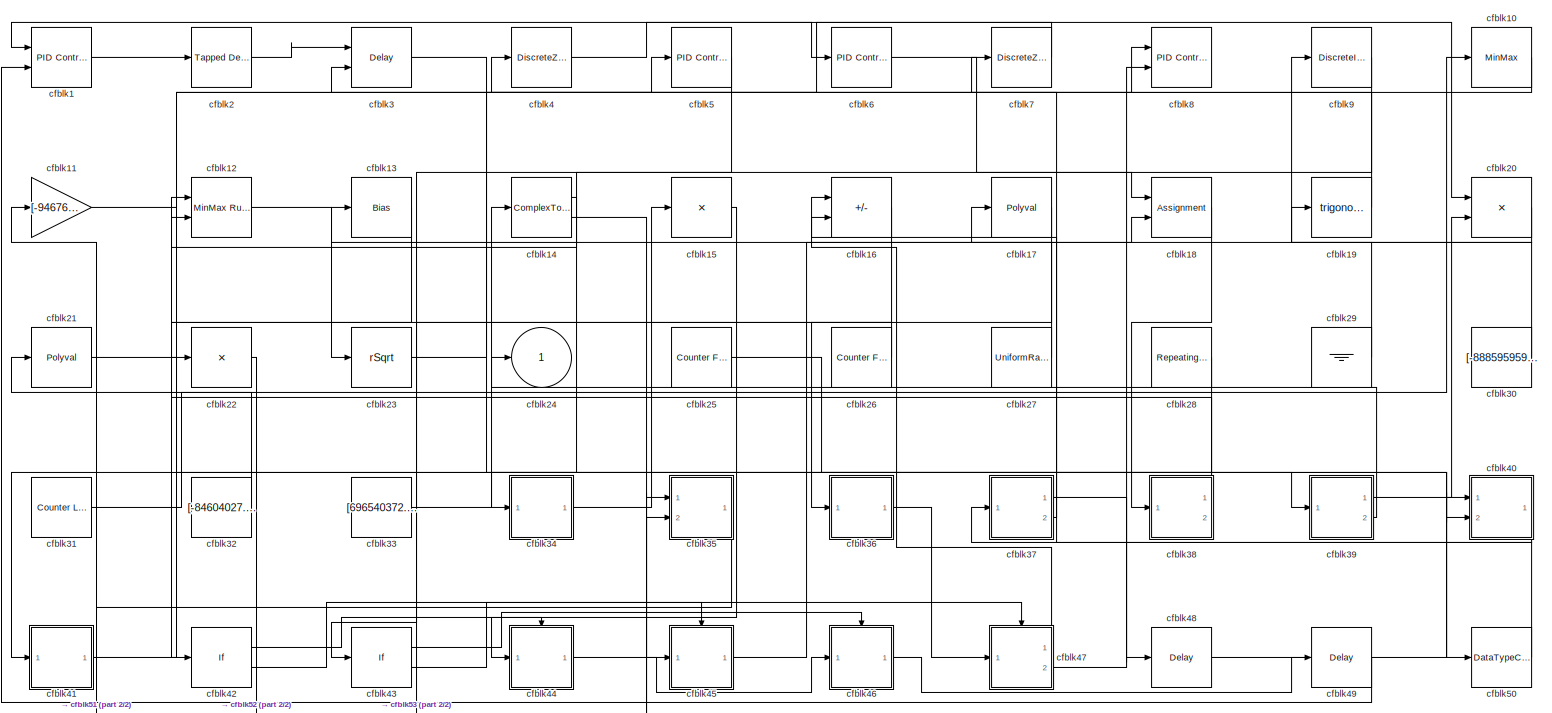
[diagram: root canvas - part 1/2, most of the canvas]
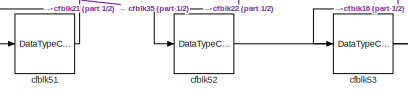
[diagram: root canvas - part 2/2, bottom left region]
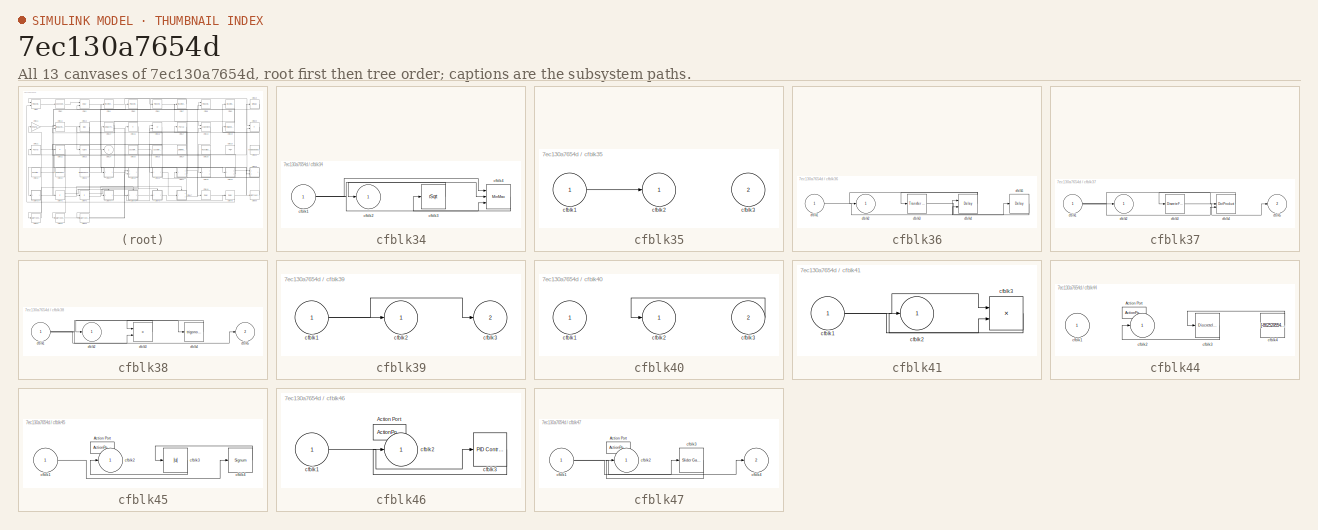
[diagram: thumbnail index - all 13 canvases of the model, root first then tree order]
MODEL slx_7ec130a7654d
KIND model
CONFIG AbsTol = auto
CONFIG EnableMultiTasking = off
CONFIG FixedStep = auto
CONFIG MaxStep = auto
CONFIG MinStep = auto
CONFIG RelTol = 1e-3
CONFIG SampleTimeConstraint = Unconstrained
CONFIG SolverName = VariableStepAuto
CONFIG StartTime = 0.0
CONFIG StopTime = 10.0
BLOCK [Reference] cfblk1  REF=slpidlib/PID Controller (2DOF)
  Ports = [2, 1]
  SourceBlock = slpidlib/PID Controller (2DOF)
  SourceProductBaseCode = SL
  SourceType = PID 2dof
BLOCK [MinMax] cfblk10
  Function = max
  Ports = [1, 1]
BLOCK [Gain] cfblk11
  Gain = [-946760570.547353]
BLOCK [Reference] cfblk12  REF=simulink/Math
Operations/MinMax
Running
Resettable
  Ports = [2, 1]
  SourceBlock = simulink/Math\nOperations/MinMax\nRunning\nResettable
  SourceProductBaseCode = SL
  SourceType = MinMax Running Resettable
BLOCK [Bias] cfblk13
  Bias = [790891112.401772]
  SaturateOnIntegerOverflow = off
BLOCK [ComplexToRealImag] cfblk14
  Ports = [1, 2]
BLOCK [Product] cfblk15
  Inputs = *
  Ports = [1, 1]
BLOCK [Sum] cfblk16
  IconShape = rectangular
  Inputs = +-
  Ports = [2, 1]
BLOCK [Polyval] cfblk17
  Coefs = [ +2.081618890e-019, -1.441693666e-014, +4.719686976e-010, -8.536869453e-006, +1.621573104e-001, -8.087801117e+001 ]
BLOCK [Assignment] cfblk18
  DiagnosticForDimensions = Warning
  IndexOptions = Index vector (dialog)
  Indices = 1
  OutputSizes = 1
  Ports = [2, 1]
BLOCK [Trigonometry] cfblk19
  Ports = [1, 1]
BLOCK [Reference] cfblk2  REF=simulink/Discrete/Tapped Delay
  Ports = [1, 1]
  SourceBlock = simulink/Discrete/Tapped Delay
  SourceProductBaseCode = SL
  SourceType = Tapped Delay Line
BLOCK [Product] cfblk20
  Inputs = **
  Ports = [2, 1]
BLOCK [Polyval] cfblk21
  Coefs = [ +2.081618890e-019, -1.441693666e-014, +4.719686976e-010, -8.536869453e-006, +1.621573104e-001, -8.087801117e+001 ]
BLOCK [Product] cfblk22
  Inputs = *
  Ports = [1, 1]
BLOCK [Sqrt] cfblk23
  AlgorithmType = Newton-Raphson
  Operator = rSqrt
BLOCK [Outport] cfblk24
BLOCK [Reference] cfblk25  REF=simulink/Sources/Counter
Free-Running
  Ports = [0, 1]
  SourceBlock = simulink/Sources/Counter\nFree-Running
  SourceProductBaseCode = SL
  SourceType = Counter Free-Running
BLOCK [Reference] cfblk26  REF=simulink/Sources/Counter
Free-Running
  Ports = [0, 1]
  SourceBlock = simulink/Sources/Counter\nFree-Running
  SourceProductBaseCode = SL
  SourceType = Counter Free-Running
BLOCK [UniformRandomNumber] cfblk27
  Maximum = [3664265038.877788]
  Minimum = [-3429399873.615873]
  SampleTime = 0.1
  Seed = [99668258.000000]
BLOCK [Reference] cfblk28  REF=simulink/Sources/Repeating
Sequence
  Ports = [0, 1]
  SourceBlock = simulink/Sources/Repeating\nSequence
  SourceProductBaseCode = SL
  SourceType = Repeating table
BLOCK [Ground] cfblk29
BLOCK [Delay] cfblk3
  DelayLengthSource = Input port
  InputPortMap = u0,p1
  Ports = [2, 1]
  SampleTime = 1
BLOCK [Constant] cfblk30
  SampleTime = 1
  Value = [-888595959.215219]
BLOCK [Reference] cfblk31  REF=simulink/Sources/Counter
Limited
  Ports = [0, 1]
  SourceBlock = simulink/Sources/Counter\nLimited
  SourceProductBaseCode = SL
  SourceType = Counter Limited
BLOCK [Constant] cfblk32
  SampleTime = 1
  Value = [-84604027.524397]
BLOCK [Constant] cfblk33
  SampleTime = 1
  Value = [696540372.431601]
BLOCK [SubSystem] cfblk34
  Ports = [1, 1]
  RequestExecContextInheritance = off
BLOCK [Inport] cfblk34/cfblk1
BLOCK [Outport] cfblk34/cfblk2
BLOCK [Sqrt] cfblk34/cfblk3
  AlgorithmType = Newton-Raphson
  Operator = rSqrt
BLOCK [MinMax] cfblk34/cfblk4
  Inputs = 3
  Ports = [3, 1]
BLOCK [SubSystem] cfblk35
  Ports = [2, 1]
  RequestExecContextInheritance = off
BLOCK [Inport] cfblk35/cfblk1
BLOCK [Outport] cfblk35/cfblk2
BLOCK [Inport] cfblk35/cfblk3
  Port = 2
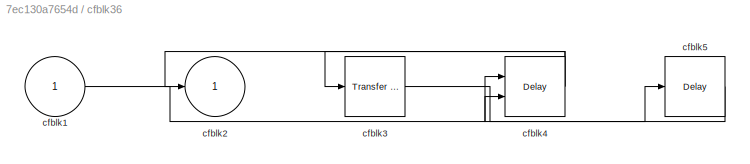
BLOCK [SubSystem] cfblk36
  Ports = [1, 1]
  RequestExecContextInheritance = off
BLOCK [Inport] cfblk36/cfblk1
BLOCK [Outport] cfblk36/cfblk2
BLOCK [Reference] cfblk36/cfblk3  REF=simulink/Discrete/Transfer Fcn
First Order
  Ports = [1, 1]
  SourceBlock = simulink/Discrete/Transfer Fcn\nFirst Order
  SourceProductBaseCode = SL
  SourceType = First Order Transfer Fcn
BLOCK [Delay] cfblk36/cfblk4
  DelayLengthSource = Input port
  InputPortMap = u0,p1
  Ports = [2, 1]
  SampleTime = 1
BLOCK [Delay] cfblk36/cfblk5
  InputPortMap = u0
  Ports = [1, 1]
  SampleTime = 1
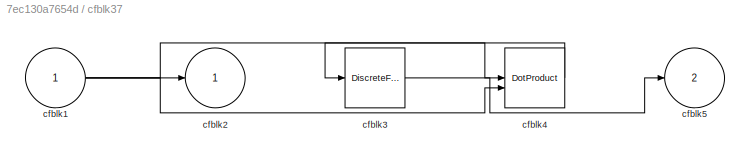
BLOCK [SubSystem] cfblk37
  Ports = [1, 2]
  RequestExecContextInheritance = off
BLOCK [Inport] cfblk37/cfblk1
BLOCK [Outport] cfblk37/cfblk2
BLOCK [DiscreteFir] cfblk37/cfblk3
  InputPortMap = u0
  OutputPortMap = o0
  Ports = [1, 1]
  SampleTime = 1
BLOCK [DotProduct] cfblk37/cfblk4
  OutDataTypeStr = Inherit: Inherit via internal rule
BLOCK [Outport] cfblk37/cfblk5
  Port = 2
BLOCK [SubSystem] cfblk38
  Ports = [1, 2]
  RequestExecContextInheritance = off
BLOCK [Inport] cfblk38/cfblk1
BLOCK [Outport] cfblk38/cfblk2
BLOCK [Product] cfblk38/cfblk3
  Ports = [2, 1]
BLOCK [Trigonometry] cfblk38/cfblk4
  Ports = [1, 1]
BLOCK [Outport] cfblk38/cfblk5
  Port = 2
BLOCK [SubSystem] cfblk39
  Ports = [1, 2]
  RequestExecContextInheritance = off
BLOCK [Inport] cfblk39/cfblk1
BLOCK [Outport] cfblk39/cfblk2
BLOCK [Outport] cfblk39/cfblk3
  Port = 2
BLOCK [DiscreteZeroPole] cfblk4
  Gain = 1
  Poles = [0 0.5]
BLOCK [SubSystem] cfblk40
  Ports = [2, 1]
  RequestExecContextInheritance = off
BLOCK [Inport] cfblk40/cfblk1
BLOCK [Outport] cfblk40/cfblk2
BLOCK [Inport] cfblk40/cfblk3
  Port = 2
BLOCK [SubSystem] cfblk41
  Ports = [1, 1]
  RequestExecContextInheritance = off
BLOCK [Inport] cfblk41/cfblk1
BLOCK [Outport] cfblk41/cfblk2
BLOCK [Product] cfblk41/cfblk3
  Inputs = **
  Ports = [2, 1]
BLOCK [If] cfblk42
  IfExpression = u1 >= 0
  Ports = [1, 2]
  SampleTime = 1
BLOCK [If] cfblk43
  IfExpression = u1 >= 0
  Ports = [1, 2]
  SampleTime = 1
BLOCK [SubSystem] cfblk44
  Ports = [1, 1, 0, 0, 0, 0, 0, 1]
  RequestExecContextInheritance = off
  TreatAsAtomicUnit = on
BLOCK [ActionPort] cfblk44/Action Port
  ActionPortLabel = if(u1 >= 0)
BLOCK [Inport] cfblk44/cfblk1
BLOCK [Outport] cfblk44/cfblk2
BLOCK [DiscreteIntegrator] cfblk44/cfblk3
  ICPrevOutput = DiscIntNeverNeededParam
  ICPrevScaledInput = DiscIntNeverNeededParam
  InitialConditionSetting = Auto
  Ports = [1, 1]
  SampleTime = -1
BLOCK [Constant] cfblk44/cfblk4
  SampleTime = 1
  Value = [-862529554.778142]
BLOCK [SubSystem] cfblk45
  Ports = [1, 1, 0, 0, 0, 0, 0, 1]
  RequestExecContextInheritance = off
  TreatAsAtomicUnit = on
BLOCK [ActionPort] cfblk45/Action Port
  ActionPortLabel = else
BLOCK [Inport] cfblk45/cfblk1
BLOCK [Outport] cfblk45/cfblk2
BLOCK [Abs] cfblk45/cfblk3
  SaturateOnIntegerOverflow = off
BLOCK [Signum] cfblk45/cfblk4
BLOCK [SubSystem] cfblk46
  Ports = [1, 1, 0, 0, 0, 0, 0, 1]
  RequestExecContextInheritance = off
  TreatAsAtomicUnit = on
BLOCK [ActionPort] cfblk46/Action Port
  ActionPortLabel = if(u1 >= 0)
BLOCK [Inport] cfblk46/cfblk1
BLOCK [Outport] cfblk46/cfblk2
BLOCK [Reference] cfblk46/cfblk3  REF=slpidlib/PID Controller
  Ports = [1, 1]
  SourceBlock = slpidlib/PID Controller
  SourceProductBaseCode = SL
  SourceType = PID 1dof
BLOCK [SubSystem] cfblk47
  Ports = [1, 2, 0, 0, 0, 0, 0, 1]
  RequestExecContextInheritance = off
  TreatAsAtomicUnit = on
BLOCK [ActionPort] cfblk47/Action Port
  ActionPortLabel = else
BLOCK [Inport] cfblk47/cfblk1
BLOCK [Outport] cfblk47/cfblk2
BLOCK [Reference] cfblk47/cfblk3  REF=simulink/Math
Operations/Slider
Gain
  Ports = [1, 1]
  SourceBlock = simulink/Math\nOperations/Slider\nGain
  SourceProductBaseCode = SL
  SourceType = Slider Gain
BLOCK [Outport] cfblk47/cfblk4
  Port = 2
BLOCK [Delay] cfblk48
  InputPortMap = u0
  Ports = [1, 1]
  SampleTime = 1
BLOCK [Delay] cfblk49
  InputPortMap = u0
  Ports = [1, 1]
  SampleTime = 1
BLOCK [Reference] cfblk5  REF=slpidlib/PID Controller
  Ports = [1, 1]
  SourceBlock = slpidlib/PID Controller
  SourceProductBaseCode = SL
  SourceType = PID 1dof
BLOCK [DataTypeConversion] cfblk50
  RndMeth = Floor
  SaturateOnIntegerOverflow = off
BLOCK [DataTypeConversion] cfblk51
  RndMeth = Floor
  SaturateOnIntegerOverflow = off
BLOCK [DataTypeConversion] cfblk52
  RndMeth = Floor
  SaturateOnIntegerOverflow = off
BLOCK [DataTypeConversion] cfblk53
  RndMeth = Floor
  SaturateOnIntegerOverflow = off
BLOCK [Reference] cfblk6  REF=slpidlib/PID Controller
  Ports = [1, 1]
  SourceBlock = slpidlib/PID Controller
  SourceProductBaseCode = SL
  SourceType = PID 1dof
BLOCK [DiscreteZeroPole] cfblk7
  Gain = 1
  Poles = [0 0.5]
BLOCK [Reference] cfblk8  REF=slpidlib/PID Controller (2DOF)
  Ports = [2, 1]
  SourceBlock = slpidlib/PID Controller (2DOF)
  SourceProductBaseCode = SL
  SourceType = PID 2dof
BLOCK [DiscreteIntegrator] cfblk9
  ICPrevOutput = DiscIntNeverNeededParam
  ICPrevScaledInput = DiscIntNeverNeededParam
  InitialConditionSetting = Auto
  Ports = [1, 1]
LINE cfblk10:1 -> cfblk3:2
LINE cfblk11:1 -> cfblk20:1
LINE cfblk12:1 -> cfblk23:1
LINE cfblk13:1 -> cfblk42:1
LINE cfblk14:1 -> cfblk12:2
LINE cfblk14:2 -> cfblk45:1
LINE cfblk15:1 -> cfblk44:1
LINE cfblk16:1 -> cfblk53:1
LINE cfblk17:1 -> cfblk36:1
LINE cfblk18:1 -> cfblk38:1
LINE cfblk19:1 -> cfblk4:1
LINE cfblk1:1 -> cfblk2:1
LINE cfblk20:1 -> cfblk9:1
LINE cfblk21:1 -> cfblk39:1
LINE cfblk22:1 -> cfblk52:1
LINE cfblk23:1 -> cfblk5:1
LINE cfblk25:1 -> cfblk50:1
LINE cfblk26:1 -> cfblk22:1
LINE cfblk27:1 -> cfblk17:1
LINE cfblk28:1 -> cfblk41:1
LINE cfblk29:1 -> cfblk13:1
LINE cfblk2:1 -> cfblk3:1
LINE cfblk30:1 -> cfblk19:1
LINE cfblk31:1 -> cfblk10:1
LINE cfblk32:1 -> cfblk11:1
LINE cfblk33:1 -> cfblk14:1
NET cfblk34/cfblk1:1 -> cfblk34/cfblk4:1, cfblk34/cfblk4:2, cfblk34/cfblk4:3
LINE cfblk34/cfblk3:1 -> cfblk34/cfblk2:1
LINE cfblk34/cfblk4:1 -> cfblk34/cfblk3:1
LINE cfblk34:1 -> cfblk15:1
LINE cfblk35/cfblk1:1 -> cfblk35/cfblk2:1
LINE cfblk35:1 -> cfblk51:1
LINE cfblk36/cfblk1:1 -> cfblk36/cfblk4:1
LINE cfblk36/cfblk3:1 -> cfblk36/cfblk5:1
NET cfblk36/cfblk4:1 -> cfblk36/cfblk2:1, cfblk36/cfblk3:1
LINE cfblk36/cfblk5:1 -> cfblk36/cfblk4:2
LINE cfblk36:1 -> cfblk47:1
NET cfblk37/cfblk1:1 -> cfblk37/cfblk2:1, cfblk37/cfblk4:1, cfblk37/cfblk4:2
LINE cfblk37/cfblk3:1 -> cfblk37/cfblk5:1
LINE cfblk37/cfblk4:1 -> cfblk37/cfblk3:1
LINE cfblk37:1 -> cfblk48:1
LINE cfblk37:2 -> cfblk16:2
NET cfblk38/cfblk1:1 -> cfblk38/cfblk3:2, cfblk38/cfblk4:1, cfblk38/cfblk5:1
LINE cfblk38/cfblk3:1 -> cfblk38/cfblk2:1
LINE cfblk38/cfblk4:1 -> cfblk38/cfblk3:1
LINE cfblk38:1 -> cfblk12:1
NET cfblk39/cfblk1:1 -> cfblk39/cfblk2:1, cfblk39/cfblk3:1
LINE cfblk39:1 -> cfblk20:2
LINE cfblk39:2 -> cfblk24:1
LINE cfblk3:1 -> cfblk40:2
LINE cfblk40/cfblk3:1 -> cfblk40/cfblk2:1
LINE cfblk40:1 -> cfblk37:1
NET cfblk41/cfblk1:1 -> cfblk41/cfblk3:1, cfblk41/cfblk3:2
LINE cfblk41/cfblk3:1 -> cfblk41/cfblk2:1
LINE cfblk41:1 -> cfblk8:1
LINE cfblk42:1 -> cfblk44:ifaction
LINE cfblk42:2 -> cfblk45:ifaction
LINE cfblk43:1 -> cfblk46:ifaction
LINE cfblk43:2 -> cfblk47:ifaction
LINE cfblk44/cfblk3:1 -> cfblk44/cfblk2:1
LINE cfblk44/cfblk4:1 -> cfblk44/cfblk3:1
LINE cfblk44:1 -> cfblk46:1
LINE cfblk45/cfblk1:1 -> cfblk45/cfblk4:1
LINE cfblk45/cfblk3:1 -> cfblk45/cfblk2:1
LINE cfblk45/cfblk4:1 -> cfblk45/cfblk3:1
LINE cfblk45:1 -> cfblk18:2
LINE cfblk46/cfblk1:1 -> cfblk46/cfblk3:1
LINE cfblk46/cfblk3:1 -> cfblk46/cfblk2:1
LINE cfblk46:1 -> cfblk49:1
NET cfblk47/cfblk1:1 -> cfblk47/cfblk3:1, cfblk47/cfblk4:1
LINE cfblk47/cfblk3:1 -> cfblk47/cfblk2:1
LINE cfblk47:1 -> cfblk16:1
LINE cfblk47:2 -> cfblk8:2
LINE cfblk48:1 -> cfblk40:1
LINE cfblk49:1 -> cfblk1:2
LINE cfblk4:1 -> cfblk6:1
LINE cfblk50:1 -> cfblk7:1
LINE cfblk51:1 -> cfblk21:1
LINE cfblk52:1 -> cfblk35:1
LINE cfblk53:1 -> cfblk35:2
LINE cfblk5:1 -> cfblk43:1
LINE cfblk6:1 -> cfblk18:1
LINE cfblk7:1 -> cfblk1:1
LINE cfblk9:1 -> cfblk34:1
note: NET lines group one-source signal fan-out (src -> all destinations, sorted); 1:1 wires keep LINE
